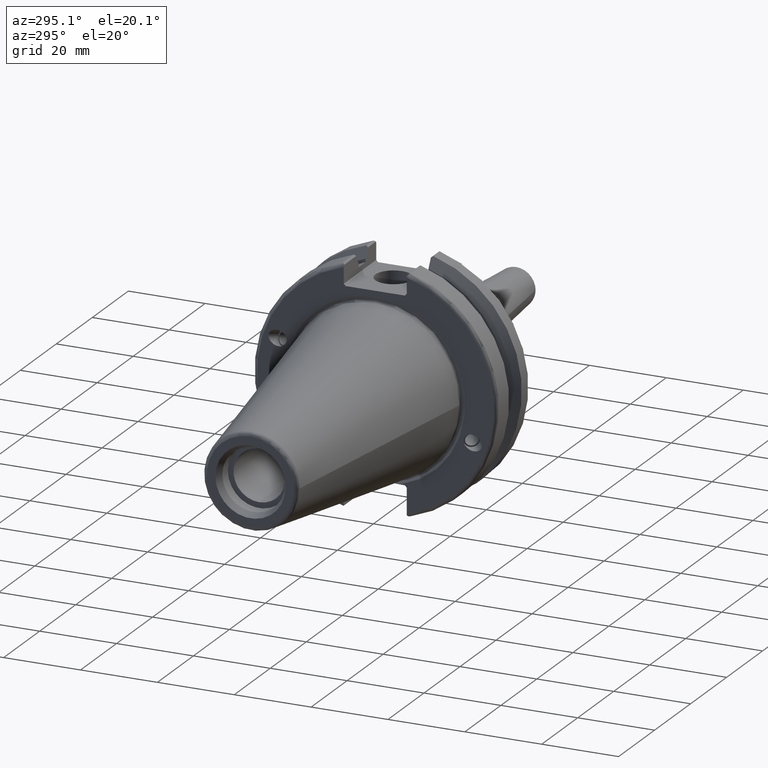
[diagram: clean part render]
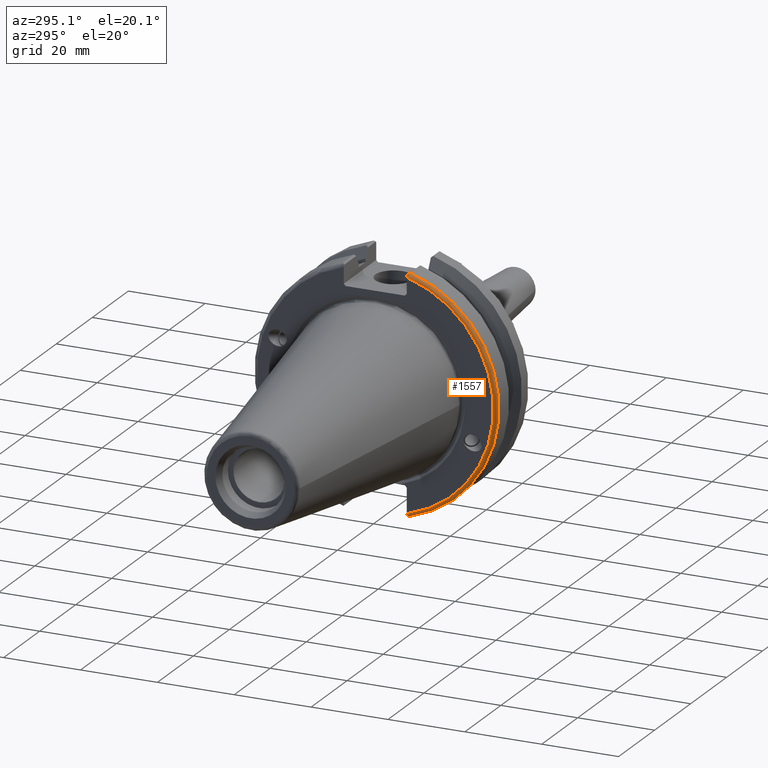
[diagram: same view with one face highlighted and labeled with its STEP entity id]
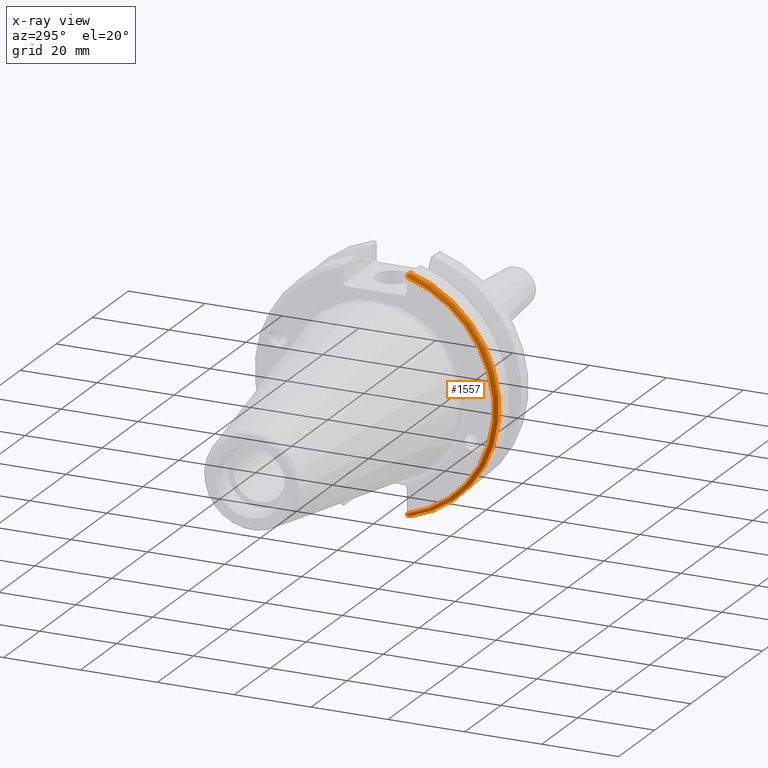
[diagram: x-ray of the same camera — body ghosted, the highlighted face saturated]
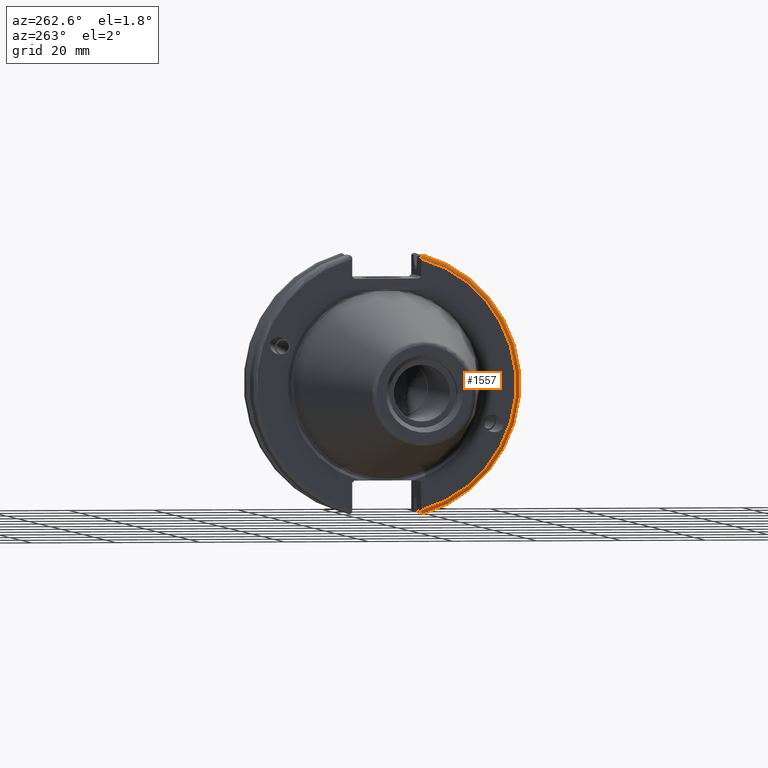
[diagram: same view with one face highlighted and labeled with its STEP entity id]
A machine part, auxiliary view. The second image highlights one B-rep face of the part: STEP entity #1557.
The next image is the same camera in x-ray: the body ghosted, the highlighted face saturated — about 0% of this face is hidden behind the body in this view.
A second angle (auxiliary view) of the same face is appended — the face is thin or edge-on in the first view.
In plain terms, the highlighted toroidal blend (fillet) surface has major radius 30.75 mm and minor (blend) radius 1 mm.
Its self-contained STEP definition (entity closure, byte-faithful):
#74=B_SPLINE_CURVE_WITH_KNOTS('',3,(#2825,#2826,#2827,#2828,#2829,#2830),
 .UNSPECIFIED.,.F.,.F.,(4,2,4),(0.0977210450333167,0.111963554372601,0.150804064902975),
 .UNSPECIFIED.);
#75=B_SPLINE_CURVE_WITH_KNOTS('',3,(#2852,#2853,#2854,#2855,#2856,#2857),
 .UNSPECIFIED.,.F.,.F.,(4,2,4),(0.452741795590859,0.491582306121234,0.505824815460518),
 .UNSPECIFIED.);
#76=B_SPLINE_CURVE_WITH_KNOTS('',3,(#2863,#2864,#2865,#2866,#2867,#2868,
#2869,#2870),.UNSPECIFIED.,.F.,.F.,(4,2,2,4),(-0.104180282751876,-0.0729784742461442,
-0.0343524753874977,0.),.UNSPECIFIED.);
#77=B_SPLINE_CURVE_WITH_KNOTS('',3,(#2873,#2874,#2875,#2876,#2877,#2878,
#2879,#2880),.UNSPECIFIED.,.F.,.F.,(4,2,2,4),(0.,0.0343524753874978,0.0729784742461443,
0.104180282751876),.UNSPECIFIED.);
#412=FACE_OUTER_BOUND('',#508,.T.);
#508=EDGE_LOOP('',(#1298,#1299,#1300,#1301,#1302,#1303));
#603=CIRCLE('',#1734,31.75);
#604=CIRCLE('',#1735,30.75);
#742=VERTEX_POINT('',#2822);
#743=VERTEX_POINT('',#2824);
#749=VERTEX_POINT('',#2849);
#750=VERTEX_POINT('',#2851);
#752=VERTEX_POINT('',#2862);
#753=VERTEX_POINT('',#2871);
#940=EDGE_CURVE('',#743,#742,#74,.T.);
#950=EDGE_CURVE('',#750,#749,#75,.T.);
#953=EDGE_CURVE('',#749,#752,#76,.T.);
#954=EDGE_CURVE('',#752,#753,#603,.T.);
#955=EDGE_CURVE('',#753,#743,#77,.T.);
#956=EDGE_CURVE('',#742,#750,#604,.T.);
#1298=ORIENTED_EDGE('',*,*,#953,.T.);
#1299=ORIENTED_EDGE('',*,*,#954,.T.);
#1300=ORIENTED_EDGE('',*,*,#955,.T.);
#1301=ORIENTED_EDGE('',*,*,#940,.T.);
#1302=ORIENTED_EDGE('',*,*,#956,.T.);
#1303=ORIENTED_EDGE('',*,*,#950,.T.);
#1507=TOROIDAL_SURFACE('',#1733,30.75,1.);
#1557=ADVANCED_FACE('',(#412),#1507,.T.);
#1733=AXIS2_PLACEMENT_3D('',#2861,#2091,#2092);
#1734=AXIS2_PLACEMENT_3D('',#2872,#2093,#2094);
#1735=AXIS2_PLACEMENT_3D('',#2881,#2095,#2096);
#2091=DIRECTION('center_axis',(1.,0.,0.));
#2092=DIRECTION('ref_axis',(0.,0.,-1.));
#2093=DIRECTION('center_axis',(-1.,0.,0.));
#2094=DIRECTION('ref_axis',(0.,-1.,1.60812264967664E-16));
#2095=DIRECTION('center_axis',(1.,0.,0.));
#2096=DIRECTION('ref_axis',(0.,-1.,1.60812264967664E-16));
#2822=CARTESIAN_POINT('',(1.,-8.18999999999999,29.6392712461019));
#2824=CARTESIAN_POINT('',(1.14412772509028,-8.19,30.1755016258903));
#2825=CARTESIAN_POINT('Ctrl Pts',(1.14412772509028,-8.19,30.1755016258903));
#2826=CARTESIAN_POINT('Ctrl Pts',(1.11818362718666,-8.19,30.131014531546));
#2827=CARTESIAN_POINT('Ctrl Pts',(1.09603565282437,-8.19,30.0852355256475));
#2828=CARTESIAN_POINT('Ctrl Pts',(1.02951443291695,-8.19,29.9212724384851));
#2829=CARTESIAN_POINT('Ctrl Pts',(1.,-8.19,29.7687396145364));
#2830=CARTESIAN_POINT('Ctrl Pts',(1.,-8.19,29.6392712461019));
#2849=CARTESIAN_POINT('',(1.14412772509028,-8.19,-30.1755016258903));
#2851=CARTESIAN_POINT('',(1.,-8.19,-29.6392712461019));
#2852=CARTESIAN_POINT('Ctrl Pts',(1.,-8.19,-29.6392712461019));
#2853=CARTESIAN_POINT('Ctrl Pts',(1.,-8.19,-29.7687396145364));
#2854=CARTESIAN_POINT('Ctrl Pts',(1.02951443291695,-8.19,-29.9212724384851));
#2855=CARTESIAN_POINT('Ctrl Pts',(1.09603565282437,-8.19,-30.0852355256475));
#2856=CARTESIAN_POINT('Ctrl Pts',(1.11818362718666,-8.19,-30.131014531546));
#2857=CARTESIAN_POINT('Ctrl Pts',(1.14412772509028,-8.19,-30.1755016258903));
#2861=CARTESIAN_POINT('Origin',(2.,0.,0.));
#2862=CARTESIAN_POINT('',(2.,-8.67204822802685,-30.5427254764662));
#2863=CARTESIAN_POINT('Ctrl Pts',(1.14412772509028,-8.19,-30.1755016258903));
#2864=CARTESIAN_POINT('Ctrl Pts',(1.19255369570113,-8.27036828330781,-30.2367261024977));
#2865=CARTESIAN_POINT('Ctrl Pts',(1.25732973376814,-8.34909446036478,-30.2966996242308));
#2866=CARTESIAN_POINT('Ctrl Pts',(1.41032758094931,-8.48862804755884,-30.4029961692546));
#2867=CARTESIAN_POINT('Ctrl Pts',(1.53155857052286,-8.56482138642532,-30.4610401774263));
#2868=CARTESIAN_POINT('Ctrl Pts',(1.75168295662254,-8.6471881193939,-30.5237870709558));
#2869=CARTESIAN_POINT('Ctrl Pts',(1.88549174870834,-8.67204822802686,-30.5427254764662));
#2870=CARTESIAN_POINT('Ctrl Pts',(2.,-8.67204822802686,-30.5427254764662));
#2871=CARTESIAN_POINT('',(2.,-8.67204822802685,30.5427254764662));
#2872=CARTESIAN_POINT('Origin',(2.,0.,0.));
#2873=CARTESIAN_POINT('Ctrl Pts',(2.,-8.67204822802686,30.5427254764662));
#2874=CARTESIAN_POINT('Ctrl Pts',(1.88549174870834,-8.67204822802686,30.5427254764662));
#2875=CARTESIAN_POINT('Ctrl Pts',(1.75168295662254,-8.64718811939389,30.5237870709558));
#2876=CARTESIAN_POINT('Ctrl Pts',(1.53155857052286,-8.56482138642532,30.4610401774263));
#2877=CARTESIAN_POINT('Ctrl Pts',(1.41032758094931,-8.48862804755883,30.4029961692546));
#2878=CARTESIAN_POINT('Ctrl Pts',(1.25732973376814,-8.34909446036477,30.2966996242308));
#2879=CARTESIAN_POINT('Ctrl Pts',(1.19255369570113,-8.2703682833078,30.2367261024977));
#2880=CARTESIAN_POINT('Ctrl Pts',(1.14412772509028,-8.19,30.1755016258903));
#2881=CARTESIAN_POINT('Origin',(1.,0.,0.));